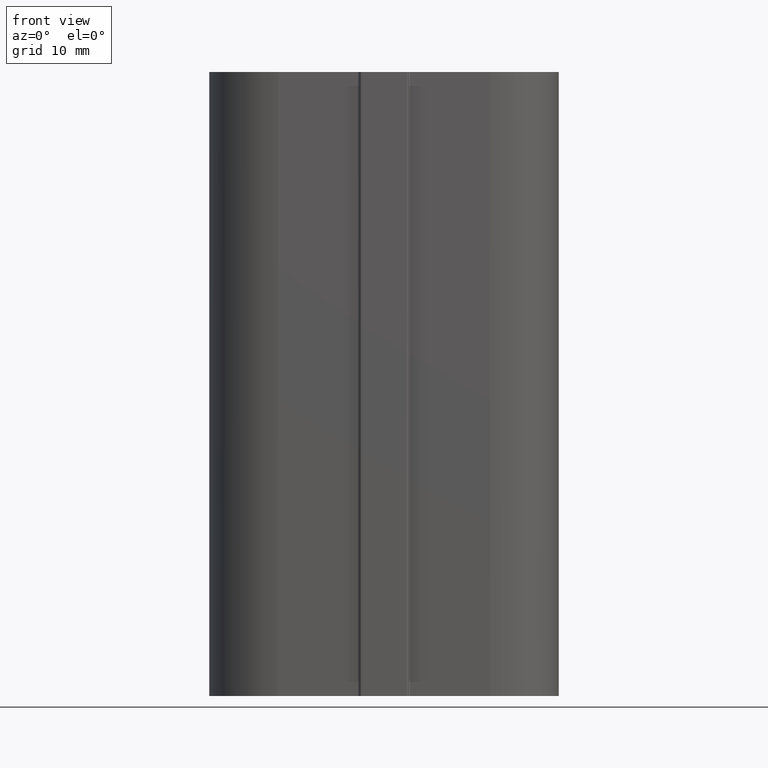
[diagram: clean part render]
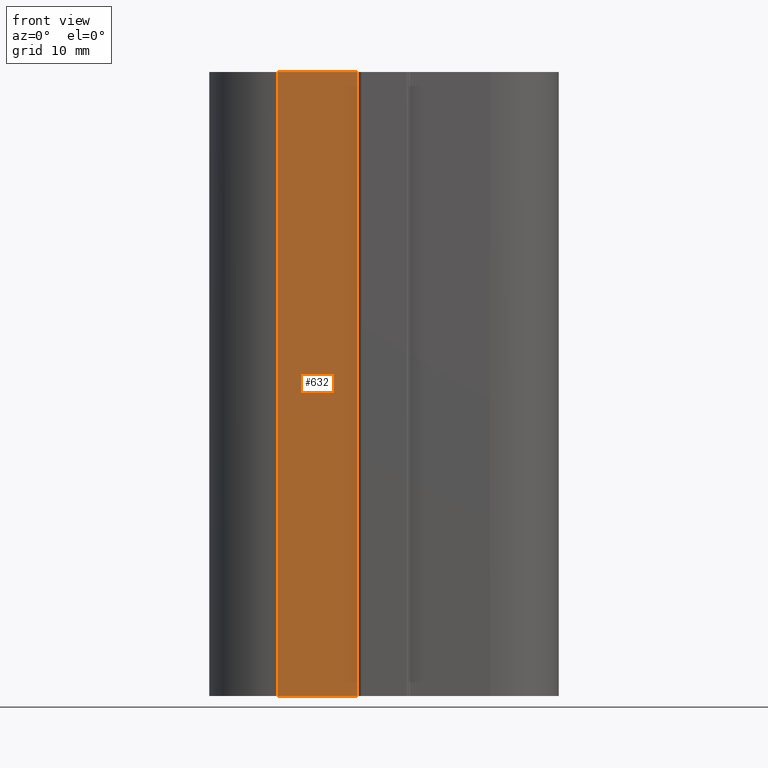
[diagram: same view with one face highlighted and labeled with its STEP entity id]
A machine part, front view. The second image highlights one B-rep face of the part: STEP entity #632.
In plain terms, the highlighted planar face has unit normal (-0, -1, 0).
Its self-contained STEP definition (entity closure, byte-faithful):
#54=LINE('',#1029,#113);
#55=LINE('',#1032,#114);
#56=LINE('',#1034,#115);
#57=LINE('',#1035,#116);
#113=VECTOR('',#838,100.);
#114=VECTOR('',#841,12.7999736400015);
#115=VECTOR('',#842,12.7999736400015);
#116=VECTOR('',#843,100.);
#143=PLANE('',#689);
#177=FACE_OUTER_BOUND('',#212,.T.);
#212=EDGE_LOOP('',(#493,#494,#495,#496));
#302=VERTEX_POINT('',#1025);
#303=VERTEX_POINT('',#1027);
#304=VERTEX_POINT('',#1031);
#305=VERTEX_POINT('',#1033);
#383=EDGE_CURVE('',#302,#303,#54,.T.);
#384=EDGE_CURVE('',#302,#304,#55,.T.);
#385=EDGE_CURVE('',#305,#303,#56,.T.);
#386=EDGE_CURVE('',#304,#305,#57,.T.);
#493=ORIENTED_EDGE('',*,*,#384,.F.);
#494=ORIENTED_EDGE('',*,*,#383,.T.);
#495=ORIENTED_EDGE('',*,*,#385,.F.);
#496=ORIENTED_EDGE('',*,*,#386,.F.);
#632=ADVANCED_FACE('',(#177),#143,.T.);
#689=AXIS2_PLACEMENT_3D('',#1030,#839,#840);
#838=DIRECTION('',(0.,0.,1.));
#839=DIRECTION('center_axis',(-4.51029032591831E-15,-1.,0.));
#840=DIRECTION('ref_axis',(1.,-4.50750547997814E-15,0.));
#841=DIRECTION('',(-1.,4.51029032591831E-15,0.));
#842=DIRECTION('',(1.,-4.51029032591831E-15,0.));
#843=DIRECTION('',(0.,0.,1.));
#1025=CARTESIAN_POINT('',(-4.19999235999847,1.00000562998473,0.));
#1027=CARTESIAN_POINT('',(-4.19999235999847,1.00000562998473,100.));
#1029=CARTESIAN_POINT('',(-4.19999235999847,1.00000562998473,0.));
#1030=CARTESIAN_POINT('Origin',(-16.999966,1.00000562998479,0.));
#1031=CARTESIAN_POINT('',(-16.999966,1.00000562998479,0.));
#1032=CARTESIAN_POINT('',(-4.19999235999847,1.00000562998473,0.));
#1033=CARTESIAN_POINT('',(-16.999966,1.00000562998479,100.));
#1034=CARTESIAN_POINT('',(-4.19999235999847,1.00000562998473,100.));
#1035=CARTESIAN_POINT('',(-16.999966,1.00000562998479,0.));